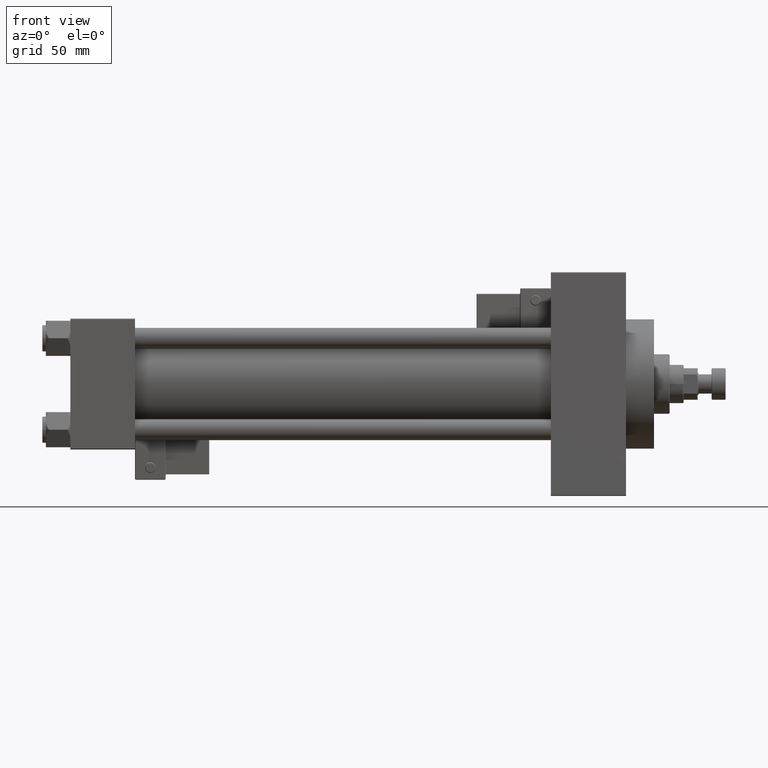
[diagram: clean part render]
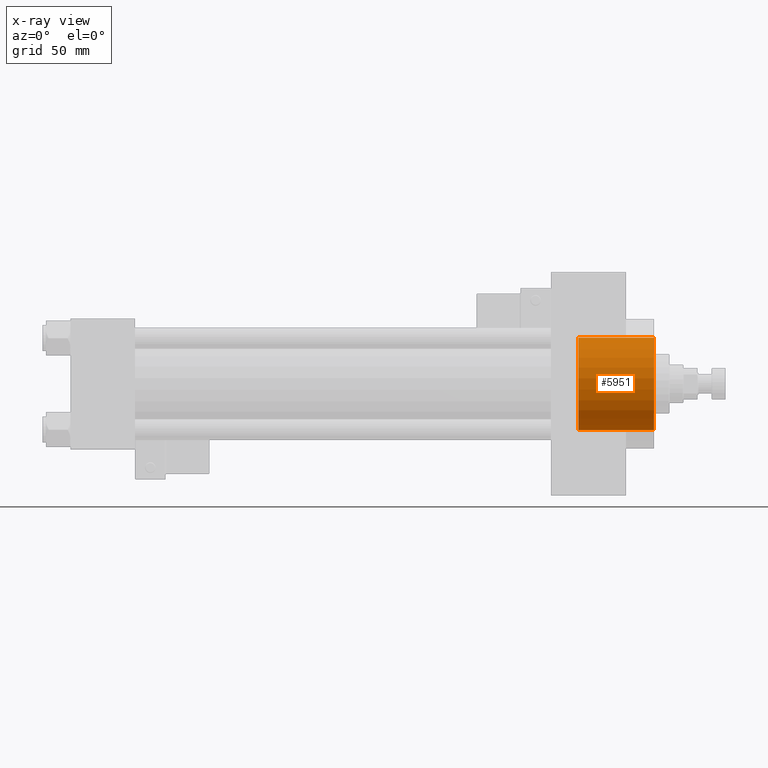
[diagram: x-ray — body ghosted, one internal face saturated and labeled with its STEP entity id]
A machine part, front view, then the same camera in x-ray: the body is ghosted and one INTERNAL B-rep face — a face not visible from any outside direction — is saturated and labeled: STEP entity #5951.
In plain terms, the highlighted cylindrical surface (partial cylindrical patch) has radius 26.5 mm, axis along (1, 0, 0).
Its self-contained STEP definition (entity closure, byte-faithful):
#3517 = DIRECTION ( 'NONE',  ( 1.000000000000000000, -0.000000000000000000, -0.000000000000000000 ) ) ;
#4776 = VERTEX_POINT ( 'NONE', #33547 ) ;
#5951 = ADVANCED_FACE ( 'NONE', ( #17137 ), #13369, .F. ) ;
#7078 = ORIENTED_EDGE ( 'NONE', *, *, #9748, .F. ) ;
#7685 = VECTOR ( 'NONE', #3517, 1000.000000000000000 ) ;
#7836 = CARTESIAN_POINT ( 'NONE',  ( 290.7399999999999523, 3.245314017740486554E-15, 26.50000000000000355 ) ) ;
#9748 = EDGE_CURVE ( 'NONE', #40535, #20839, #34569, .T. ) ;
#12168 = CARTESIAN_POINT ( 'NONE',  ( 290.7399999999999523, 3.245314017740486554E-15, 26.50000000000000355 ) ) ;
#13334 = VECTOR ( 'NONE', #38864, 1000.000000000000000 ) ;
#13369 = CYLINDRICAL_SURFACE ( 'NONE', #21290, 26.50000000000000355 ) ;
#13447 = EDGE_LOOP ( 'NONE', ( #33758, #47119, #26871, #7078 ) ) ;
#15401 = LINE ( 'NONE', #7836, #13334 ) ;
#15736 = AXIS2_PLACEMENT_3D ( 'NONE', #16445, #28061, #40164 ) ;
#16445 = CARTESIAN_POINT ( 'NONE',  ( 290.7399999999999523, 0.000000000000000000, 0.000000000000000000 ) ) ;
#17137 = FACE_OUTER_BOUND ( 'NONE', #13447, .T. ) ;
#17208 = VERTEX_POINT ( 'NONE', #12168 ) ;
#18891 = DIRECTION ( 'NONE',  ( 0.000000000000000000, 0.000000000000000000, -1.000000000000000000 ) ) ;
#20588 = CIRCLE ( 'NONE', #15736, 26.50000000000000355 ) ;
#20839 = VERTEX_POINT ( 'NONE', #46080 ) ;
#21290 = AXIS2_PLACEMENT_3D ( 'NONE', #44633, #21701, #18891 ) ;
#21701 = DIRECTION ( 'NONE',  ( 1.000000000000000000, -0.000000000000000000, -0.000000000000000000 ) ) ;
#25242 = DIRECTION ( 'NONE',  ( 0.000000000000000000, 0.000000000000000000, -1.000000000000000000 ) ) ;
#26150 = CIRCLE ( 'NONE', #42270, 26.50000000000000355 ) ;
#26871 = ORIENTED_EDGE ( 'NONE', *, *, #49757, .T. ) ;
#28025 = EDGE_CURVE ( 'NONE', #17208, #4776, #15401, .T. ) ;
#28061 = DIRECTION ( 'NONE',  ( 1.000000000000000000, 0.000000000000000000, 0.000000000000000000 ) ) ;
#28798 = CARTESIAN_POINT ( 'NONE',  ( 333.9999999999999432, 0.000000000000000000, 0.000000000000000000 ) ) ;
#30864 = EDGE_CURVE ( 'NONE', #17208, #40535, #20588, .T. ) ;
#33547 = CARTESIAN_POINT ( 'NONE',  ( 333.9999999999999432, 3.245314017740486554E-15, 26.50000000000000355 ) ) ;
#33758 = ORIENTED_EDGE ( 'NONE', *, *, #30864, .F. ) ;
#34569 = LINE ( 'NONE', #49915, #7685 ) ;
#35785 = CARTESIAN_POINT ( 'NONE',  ( 290.7399999999999523, 0.000000000000000000, -26.50000000000000355 ) ) ;
#38864 = DIRECTION ( 'NONE',  ( 1.000000000000000000, -0.000000000000000000, -0.000000000000000000 ) ) ;
#40164 = DIRECTION ( 'NONE',  ( 0.000000000000000000, 0.000000000000000000, -1.000000000000000000 ) ) ;
#40535 = VERTEX_POINT ( 'NONE', #35785 ) ;
#42270 = AXIS2_PLACEMENT_3D ( 'NONE', #28798, #47690, #25242 ) ;
#44633 = CARTESIAN_POINT ( 'NONE',  ( 290.7399999999999523, 0.000000000000000000, 0.000000000000000000 ) ) ;
#46080 = CARTESIAN_POINT ( 'NONE',  ( 333.9999999999999432, 0.000000000000000000, -26.50000000000000355 ) ) ;
#47119 = ORIENTED_EDGE ( 'NONE', *, *, #28025, .T. ) ;
#47690 = DIRECTION ( 'NONE',  ( 1.000000000000000000, 0.000000000000000000, 0.000000000000000000 ) ) ;
#49757 = EDGE_CURVE ( 'NONE', #4776, #20839, #26150, .T. ) ;
#49915 = CARTESIAN_POINT ( 'NONE',  ( 290.7399999999999523, 0.000000000000000000, -26.50000000000000355 ) ) ;